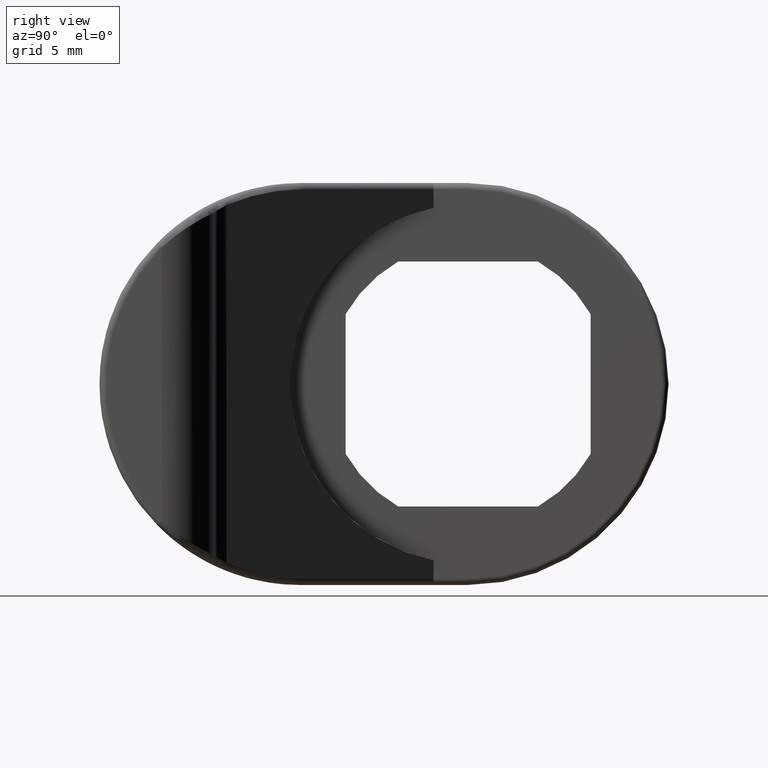
[diagram: clean part render]
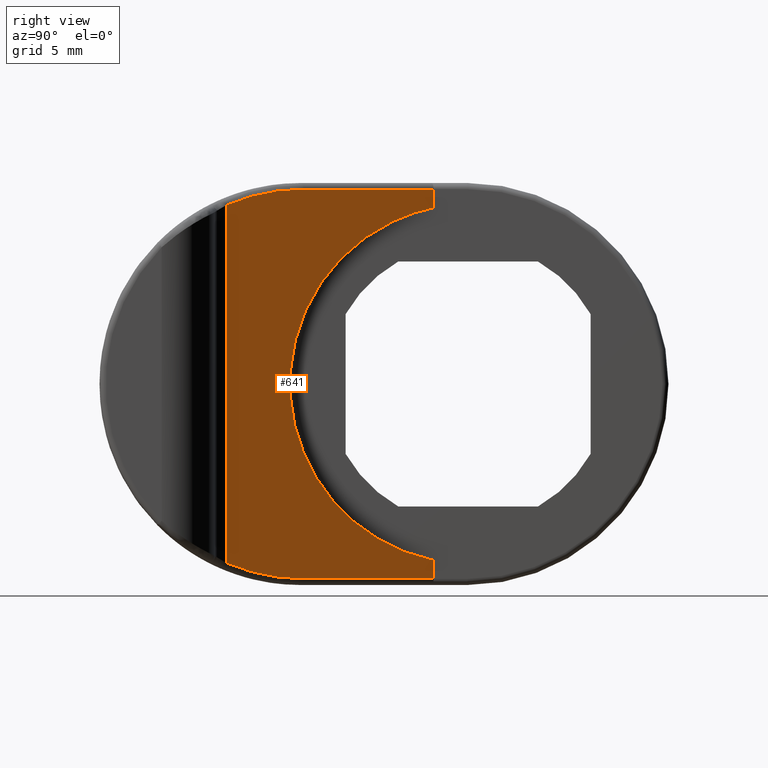
[diagram: same view with one face highlighted and labeled with its STEP entity id]
A machine part, right view. The second image highlights one B-rep face of the part: STEP entity #641.
In plain terms, the highlighted planar face has unit normal (0.8552, 0.5184, 0).
Its self-contained STEP definition (entity closure, byte-faithful):
#31=PLANE('',#710);
#90=FACE_OUTER_BOUND('',#129,.T.);
#129=EDGE_LOOP('',(#580,#581,#582,#583,#584,#585,#586,#587));
#133=ELLIPSE('',#657,18.417746725672,15.75);
#135=ELLIPSE('',#668,18.417746725672,15.75);
#137=ELLIPSE('',#692,17.0165780121883,14.5517857142857);
#144=LINE('',#917,#187);
#146=LINE('',#1172,#189);
#180=LINE('',#1330,#223);
#181=LINE('',#1332,#224);
#182=LINE('',#1333,#225);
#187=VECTOR('',#740,12.2677541855702);
#189=VECTOR('',#772,12.2677541855702);
#223=VECTOR('',#882,28.9171760469651);
#224=VECTOR('',#885,1.5);
#225=VECTOR('',#886,1.5);
#255=VERTEX_POINT('',#896);
#259=VERTEX_POINT('',#908);
#262=VERTEX_POINT('',#915);
#264=VERTEX_POINT('',#944);
#274=VERTEX_POINT('',#1130);
#276=VERTEX_POINT('',#1167);
#296=VERTEX_POINT('',#1235);
#297=VERTEX_POINT('',#1236);
#322=EDGE_CURVE('',#262,#259,#144,.T.);
#325=EDGE_CURVE('',#264,#262,#133,.T.);
#343=EDGE_CURVE('',#276,#274,#135,.T.);
#345=EDGE_CURVE('',#255,#276,#146,.T.);
#377=EDGE_CURVE('',#296,#297,#137,.T.);
#401=EDGE_CURVE('',#274,#264,#180,.T.);
#402=EDGE_CURVE('',#259,#297,#181,.T.);
#403=EDGE_CURVE('',#296,#255,#182,.T.);
#580=ORIENTED_EDGE('',*,*,#325,.F.);
#581=ORIENTED_EDGE('',*,*,#401,.F.);
#582=ORIENTED_EDGE('',*,*,#343,.F.);
#583=ORIENTED_EDGE('',*,*,#345,.F.);
#584=ORIENTED_EDGE('',*,*,#403,.F.);
#585=ORIENTED_EDGE('',*,*,#377,.T.);
#586=ORIENTED_EDGE('',*,*,#402,.F.);
#587=ORIENTED_EDGE('',*,*,#322,.F.);
#641=ADVANCED_FACE('',(#90),#31,.T.);
#657=AXIS2_PLACEMENT_3D('',#946,#744,#745);
#668=AXIS2_PLACEMENT_3D('',#1169,#766,#767);
#692=AXIS2_PLACEMENT_3D('',#1237,#837,#838);
#710=AXIS2_PLACEMENT_3D('',#1334,#887,#888);
#740=DIRECTION('',(-0.518374907565549,0.855153468803354,0.));
#744=DIRECTION('center_axis',(-0.855153468803354,-0.518374907565549,0.));
#745=DIRECTION('ref_axis',(0.518374907565549,-0.855153468803354,1.16850593311207E-16));
#766=DIRECTION('center_axis',(-0.855153468803354,-0.518374907565549,0.));
#767=DIRECTION('ref_axis',(0.518374907565549,-0.855153468803354,1.16850593311207E-16));
#772=DIRECTION('',(0.518374907565549,-0.855153468803354,0.));
#837=DIRECTION('center_axis',(-0.855153468803354,-0.518374907565549,0.));
#838=DIRECTION('ref_axis',(0.518374907565549,-0.855153468803354,-3.26218063299785E-17));
#882=DIRECTION('',(0.,0.,1.));
#885=DIRECTION('',(0.,0.,-1.));
#886=DIRECTION('',(0.,0.,-1.));
#887=DIRECTION('center_axis',(0.855153468803354,0.518374907565549,0.));
#888=DIRECTION('ref_axis',(0.,0.,-1.));
#896=CARTESIAN_POINT('',(2.4,-2.8,-15.75));
#908=CARTESIAN_POINT('',(2.4,-2.8,15.75));
#915=CARTESIAN_POINT('',(8.75929594198184,-13.2908125462172,15.75));
#917=CARTESIAN_POINT('',(4.28152389402643,-5.90391506442591,15.75));
#944=CARTESIAN_POINT('',(12.5454434260868,-19.5367498151311,14.4585880234825));
#946=CARTESIAN_POINT('Origin',(8.75929594198184,-13.2908125462172,0.));
#1130=CARTESIAN_POINT('',(12.5454434260868,-19.5367498151311,-14.4585880234826));
#1167=CARTESIAN_POINT('',(8.75929594198184,-13.2908125462172,-15.75));
#1169=CARTESIAN_POINT('Origin',(8.75929594198184,-13.2908125462172,0.));
#1172=CARTESIAN_POINT('',(4.28152389402643,-5.90391506442591,-15.75));
#1235=CARTESIAN_POINT('',(2.4,-2.8,-14.25));
#1236=CARTESIAN_POINT('',(2.4,-2.8,14.25));
#1237=CARTESIAN_POINT('Origin',(0.6128584358324,0.148214285714287,0.));
#1330=CARTESIAN_POINT('',(12.5454434260868,-19.5367498151311,0.));
#1332=CARTESIAN_POINT('',(2.4,-2.8,0.));
#1333=CARTESIAN_POINT('',(2.4,-2.8,0.));
#1334=CARTESIAN_POINT('Origin',(2.4,-2.8,0.));